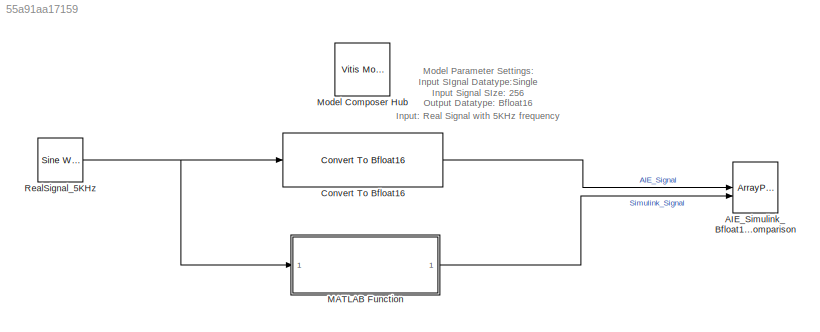
MODEL slx_55a91aa17159
KIND model
CONFIG AbsTol = auto
CONFIG EnableMultiTasking = off
CONFIG FixedStep = auto
CONFIG MaxStep = auto
CONFIG MinStep = auto
CONFIG RelTol = 1e-3
CONFIG SampleTimeConstraint = Unconstrained
CONFIG SolverName = VariableStepAuto
CONFIG StartTime = 0.0
CONFIG StopTime = 1
BLOCK [ArrayPlot] AIE_Simulink_Bfloat16_Comparison
  DefaultConfigurationName = dsp.scopes.ArrayPlotBlockSpecification
  GraphicalSettings = {"Style":{"BackgroundColor":[0.15686274509803921,0.15686274509803921,0.15686274509803921],"AxesColor":[0,0,0],"LabelsColor":[0.68627450980392157,0.68627450980392157,0.68627450980392157],"PreserveColors":false,"Visible":[true,true],"LineStyle":["-","-"],"LineColor":[[0.30196078431372547,0.74509803921568629,0.93333333333333335],[1,1,0]],"LineWidth":[1,1.5],"Marker":["none","none"],"FontSize":"small"...<+507ch>
  NumInputPorts = 2
  PlotType = Line
  ScopeFrameLocation = window
  ShowLegend = on
  Visible = on
  WasSavedAsWebScope = on
  WindowPosition = [1.000000,6.000000,1274.000000,655.000000,]
  YLimits = [-1.25,1.25]
BLOCK [Reference] Convert To Bfloat16  REF=aieUtilities/Convert To Bfloat16
  SourceBlock = aieUtilities/Convert To Bfloat16
  SourceType = Convert To Bfloat16
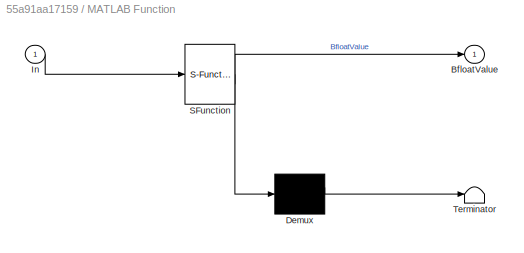
BLOCK [SubSystem] MATLAB Function
  ErrorFcn = Stateflow.Translate.translate
  PermitHierarchicalResolution = ExplicitOnly
  SFBlockType = MATLAB Function
  TreatAsAtomicUnit = on
BLOCK [Demux] MATLAB Function/ Demux 
  Outputs = 1
BLOCK [S-Function] MATLAB Function/ SFunction 
  EnableBusSupport = off
  FunctionName = sf_sfun
  PortCounts = [1 2]
  SFcnIsStateOwnerBlock = off
  SFunctionDeploymentMode = off
  Tag = Stateflow S-Function 2
BLOCK [Terminator] MATLAB Function/ Terminator 
BLOCK [Outport] MATLAB Function/BfloatValue
BLOCK [Inport] MATLAB Function/In
BLOCK [Reference] Model Composer Hub  REF=vmcUtilities/Vitis Model Composer Hub
  SourceBlock = vmcUtilities/Vitis Model Composer Hub
  SourceType = VMC Hub
  Tag = genX
  UserDataPersistent = on
BLOCK [Reference] RealSignal_5KHz  REF=dspsrcs4/Sine Wave
  SourceBlock = dspsrcs4/Sine Wave
  SourceType = Sine Wave
ANNOTATION (root): Model Parameter Settings: Input SIgnal Datatype:Single Input Signal SIze: 256 Input: Real Signal with 5KHz frequency Output Datatype: Bfloat16
LINE Convert To Bfloat16:1 -> AIE_Simulink_Bfloat16_Comparison:1
LINE MATLAB Function:1 -> AIE_Simulink_Bfloat16_Comparison:2
NET RealSignal_5KHz:1 -> Convert To Bfloat16:1, MATLAB Function:1
note: NET lines group one-source signal fan-out (src -> all destinations, sorted); 1:1 wires keep LINE
CHART MATLAB Function states=1 transitions=1
  STATE_LABEL 'eML_blk_kernel()'
  STATE_LABEL 'SCRIPT:\nfunction  BfloatValue = bfloat16(In)\n\nBfloat16 = CustomFloat(In, 16, 7); \nBfloatValue = single(Bfloat16);\n\n% Fraction: 7 bits\n% Exponent: 8 bits'
CHART  states=0 transitions=0
